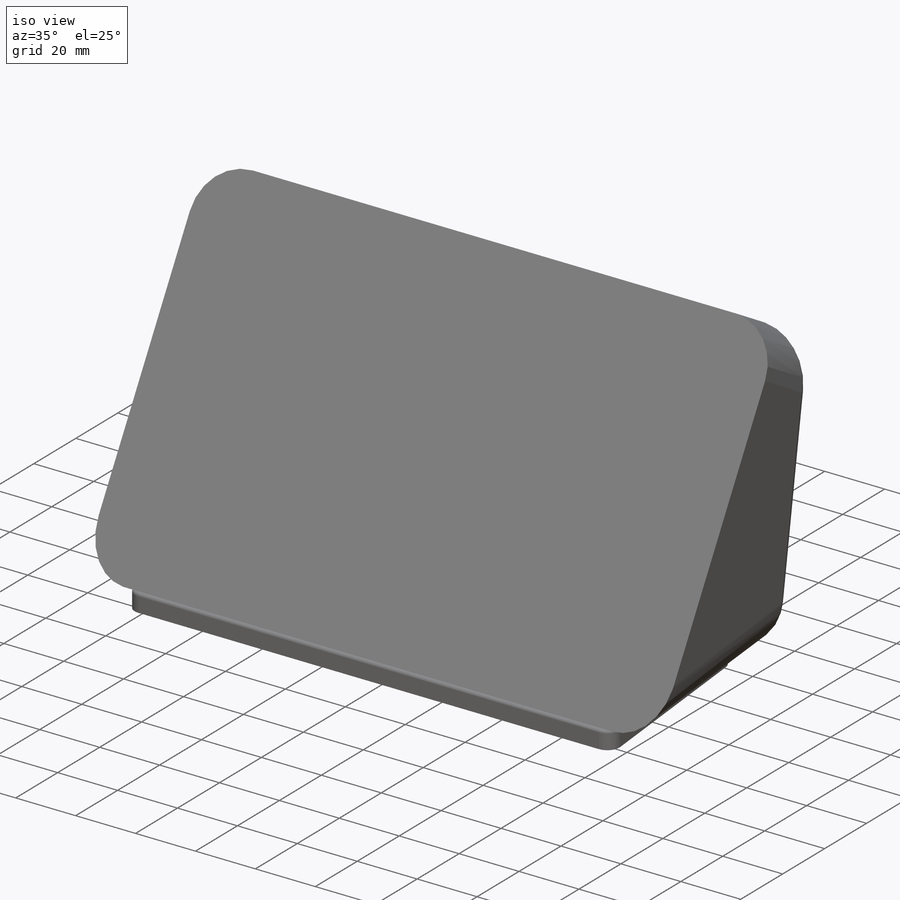
[diagram: iso view]
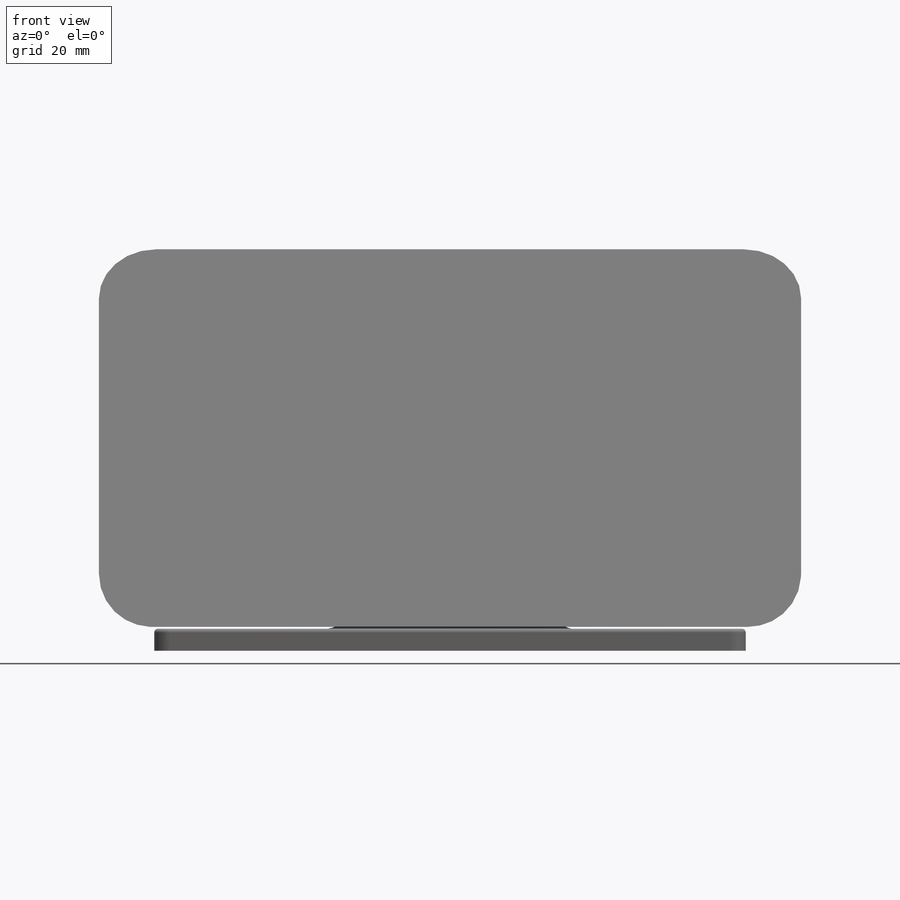
[diagram: front view]
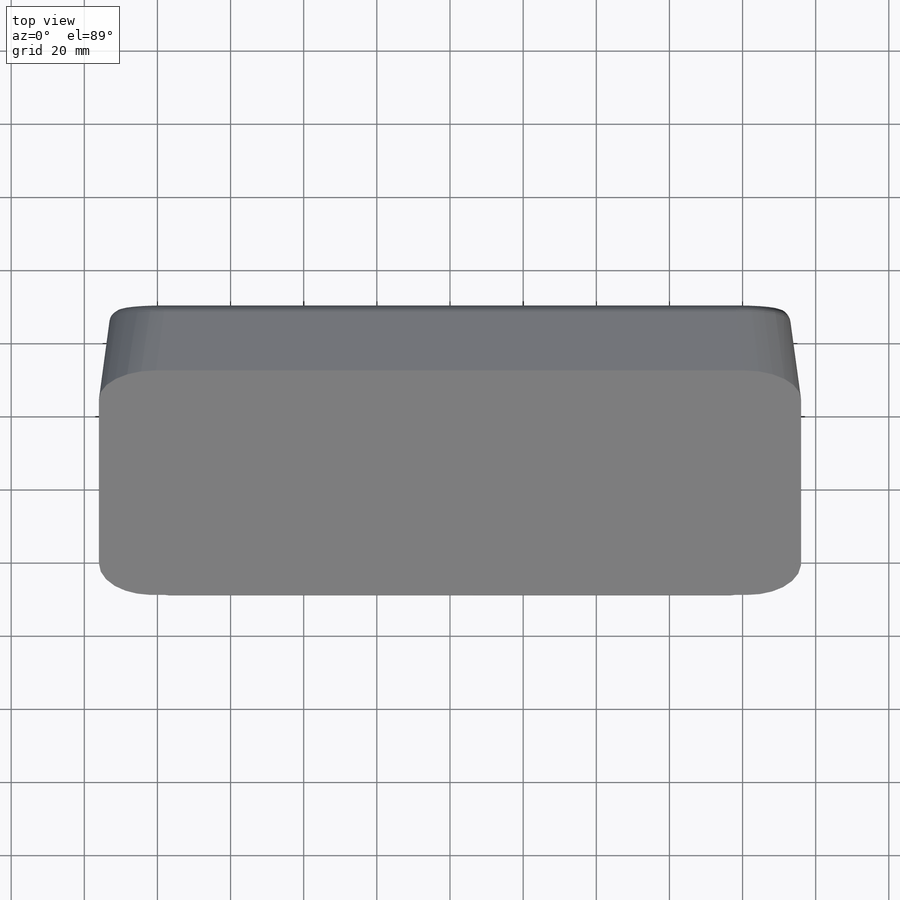
[diagram: top view]
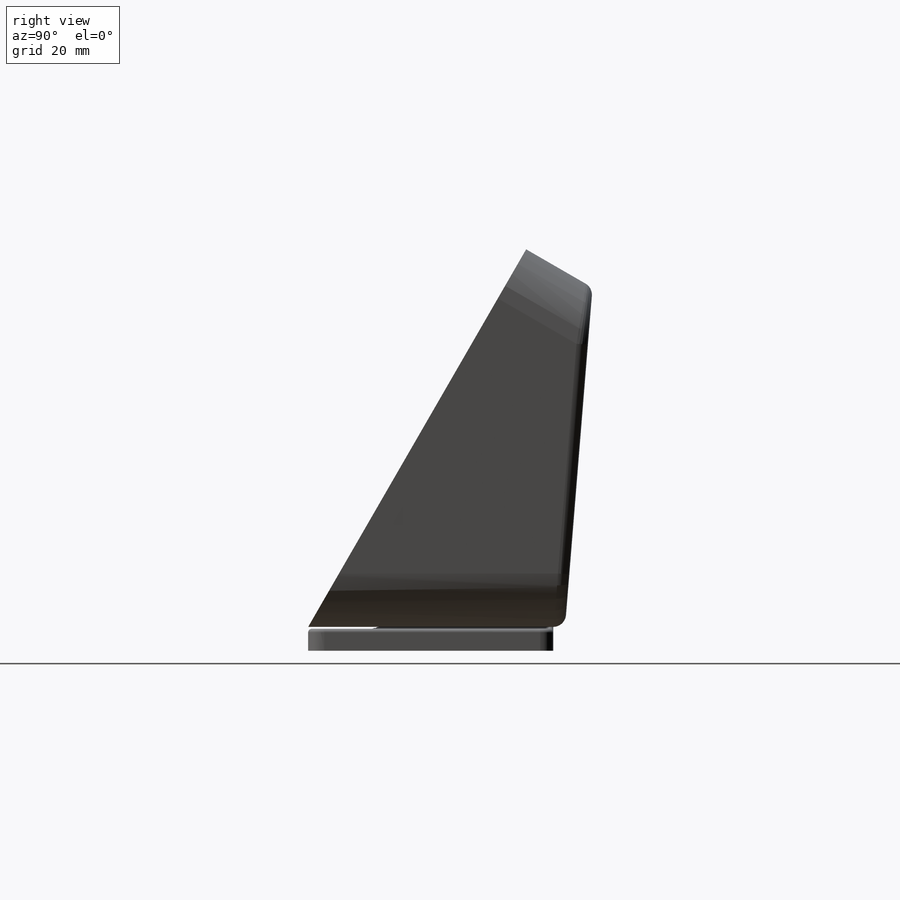
[diagram: right view]
SOLIDWORKS PART (.sldprt)
format: sldprt  version: not decoded by parser v0  size: 1,005,056 bytes
history: native  units: mm
features: sketch x14, plane x6, fillet x6, extrude x4, cut_extrude x3, move_body x3, shell x2, delete_body x2, material x1, mirror x1 (+8 scaffold rows collapsed)
feature tree (50):
  scaffold x8  (default folders/planes/origin — collapsed)
  material  "Matériau <non spécifié>"
  plane  "Plan de face"
  plane  "Plan de dessus"
  plane  "Plan de droite"
  sketch  "Esquisse1"  dims[c1.D1=68.0mm c1.D2=116.0mm c1.D3=20.0mm c1.D4=91.2mm c1.D5=91.2mm c2.D5=~61.324548deg c2.D4=91.2mm c3.D4=80.8deg c4.D4=~100.687721mm c5.D4=90.0deg c5.D5=114.4mm c6.D5=60.0deg]
  extrude  "Boss.-Extru.1"  Depth=189mm
  sketch  "Esquisse4"  dims[c1.D1=184.0mm c2.D1=84.2deg]
  sketch  "Esquisse5"  dims[D1=0.0mm]
  mirror  "Symétrie5"
  fillet  "Congé1"  Radius=14mm
  sketch  "Esquisse19"  dims[D1=63.0mm D2=49.6mm]
  cut_extrude  "Enlèv. mat.-Extru.4"  Depth=4mm
  fillet  "Congé7"  Radius=5mm
  fillet  "Congé11"  Radius=2mm
  move_body  "Corps-Déplacer/Copier5"
  shell  "Coque5"  Thickness=1.5mm
  plane  "Plan4"  Offset=0mm
  move_body  "Coque6"
  sketch  "Esquisse34"  dims[c1.D1=0.0mm c2.D1=0.5mm]
  sketch  "Esquisse36"
  sketch  "Esquisse37"  dims[D1=0.0mm]
  extrude  "Boss.-Extru.15"  Depth=6mm
  fillet  "Congé16"  Radius=4mm
  fillet  "Congé17"  Radius=1mm
  move_body  "Coque7"
  sketch  "Esquisse39"  dims[D1=0.5mm]
  cut_extrude  "Enlèv. mat.-Extru.6"  Depth=1.2mm
  sketch  "Esquisse40"
  extrude  "Boss.-Extru.16"  [1 undecoded]
  sketch  "Esquisse41"  dims[D1=5.0mm]
  cut_extrude  "Enlèv. mat.-Extru.7"  [1 undecoded]
  fillet  "Congé18"  Radius=0.5mm
  sketch  "Esquisse42"  dims[D1=1.05mm D2=5.0mm D3=5.0mm D4=1.2mm]
  delete_body  "Corps-Effacer/suppr3"
  plane  "Plan11"
  plane  "Plan12"  Offset=1.2mm
  shell  "Ligne de séparation5"  [1 undecoded]
  sketch  "Esquisse62"
  sketch  "Esquisse63"  dims[D1=0.5mm D2=1.2mm]
  sketch  "Esquisse68"  dims[D1=46.0mm D2=36.0mm]
  extrude  "Boss.-Extru.26"  Depth=1mm
  delete_body  "Enregistrer les corps2"
decode coverage: 23 of 35 modeling features carry decoded parameters
note: ~ marks probable driven/reference dimensions
note: 3 parameter values undecoded
summary: no parameter record found for 3 features
note: suppression state not decoded; provenance and decode notes live in map.json
